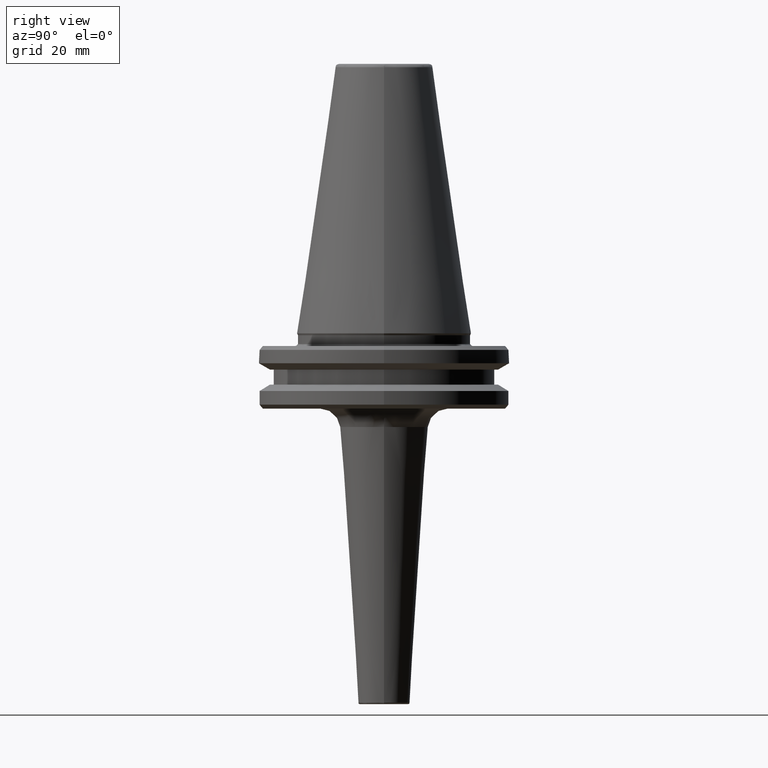
[diagram: clean part render]
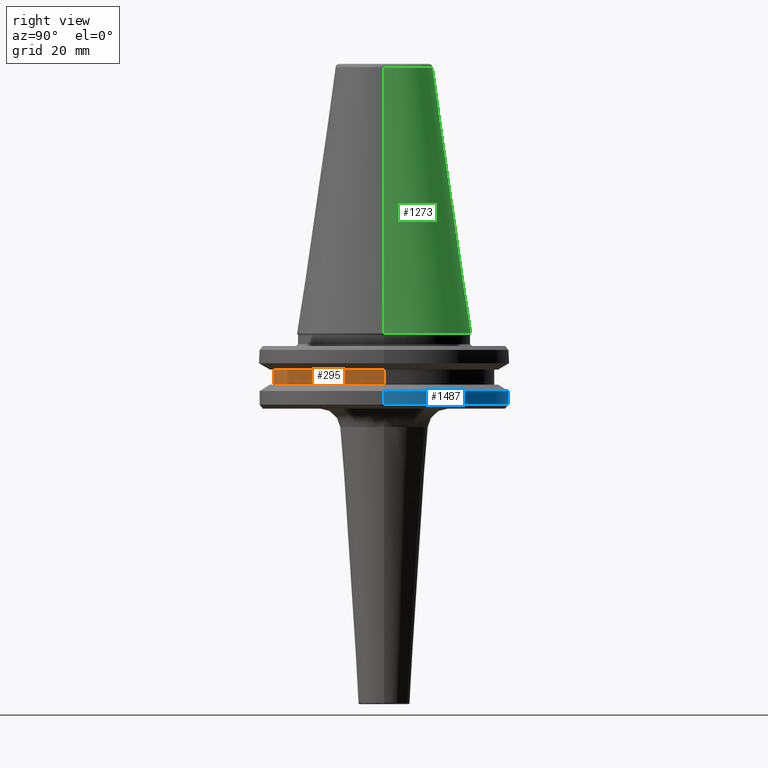
[diagram: same view with three faces highlighted in distinct colors, each labeled with its STEP entity id]
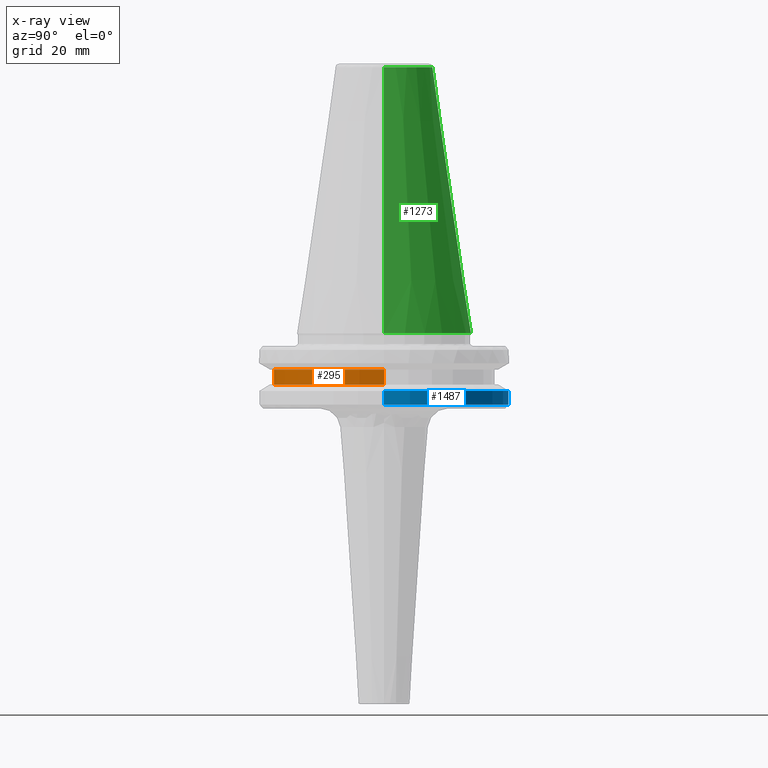
[diagram: x-ray of the same camera — body ghosted, the three highlighted faces saturated]
A machine part, right view with three faces highlighted in distinct colors.
The next image is the same camera in x-ray (body ghosted, the three faces saturated) — at least one of them is partly hidden behind the body in this view.
Their STEP definitions:

[orange] entity #295 — the highlighted cylindrical surface (partial cylindrical patch) has radius 28 mm, axis along (0, 0, 1).
#87 = VERTEX_POINT ( 'NONE', #1504 ) ;
#103 = VECTOR ( 'NONE', #912, 1000.000000000000000 ) ;
#135 = CARTESIAN_POINT ( 'NONE',  ( 0.0000000000000000000, 0.0000000000000000000, 113.5216080541959500 ) ) ;
#197 = ORIENTED_EDGE ( 'NONE', *, *, #1276, .T. ) ;
#214 = DIRECTION ( 'NONE',  ( 1.000000000000000000, 0.0000000000000000000, 0.0000000000000000000 ) ) ;
#216 = DIRECTION ( 'NONE',  ( -0.0000000000000000000, -0.0000000000000000000, -1.000000000000000000 ) ) ;
#219 = CARTESIAN_POINT ( 'NONE',  ( 0.0000000000000000000, 0.0000000000000000000, -9.199999999999999300 ) ) ;
#295 = ADVANCED_FACE ( 'NONE', ( #928 ), #542, .T. ) ;
#318 = CARTESIAN_POINT ( 'NONE',  ( 28.00000000000000000, 0.0000000000000000000, -9.199999999999999300 ) ) ;
#382 = EDGE_CURVE ( 'NONE', #87, #584, #565, .T. ) ;
#461 = DIRECTION ( 'NONE',  ( 0.0000000000000000000, 0.0000000000000000000, 1.000000000000000000 ) ) ;
#542 = CYLINDRICAL_SURFACE ( 'NONE', #919, 28.00000000000000000 ) ;
#565 = CIRCLE ( 'NONE', #618, 28.00000000000000000 ) ;
#584 = VERTEX_POINT ( 'NONE', #1349 ) ;
#589 = CARTESIAN_POINT ( 'NONE',  ( 0.0000000000000000000, 0.0000000000000000000, -13.00000000000001100 ) ) ;
#598 = CARTESIAN_POINT ( 'NONE',  ( -28.00000000000000000, 3.429011037612589300E-015, 113.5216080541959500 ) ) ;
#618 = AXIS2_PLACEMENT_3D ( 'NONE', #589, #461, #827 ) ;
#619 = VECTOR ( 'NONE', #630, 1000.000000000000000 ) ;
#630 = DIRECTION ( 'NONE',  ( 0.0000000000000000000, 0.0000000000000000000, 1.000000000000000000 ) ) ;
#638 = DIRECTION ( 'NONE',  ( 0.0000000000000000000, 0.0000000000000000000, 1.000000000000000000 ) ) ;
#664 = LINE ( 'NONE', #938, #103 ) ;
#769 = ORIENTED_EDGE ( 'NONE', *, *, #814, .T. ) ;
#781 = CARTESIAN_POINT ( 'NONE',  ( -28.00000000000000000, 3.429011037612589300E-015, -9.199999999999999300 ) ) ;
#801 = LINE ( 'NONE', #598, #619 ) ;
#814 = EDGE_CURVE ( 'NONE', #584, #1229, #664, .T. ) ;
#827 = DIRECTION ( 'NONE',  ( 1.000000000000000000, 0.0000000000000000000, 0.0000000000000000000 ) ) ;
#910 = VERTEX_POINT ( 'NONE', #781 ) ;
#912 = DIRECTION ( 'NONE',  ( 0.0000000000000000000, 0.0000000000000000000, 1.000000000000000000 ) ) ;
#919 = AXIS2_PLACEMENT_3D ( 'NONE', #135, #638, #959 ) ;
#928 = FACE_OUTER_BOUND ( 'NONE', #966, .T. ) ;
#938 = CARTESIAN_POINT ( 'NONE',  ( 28.00000000000000000, 0.0000000000000000000, 113.5216080541959500 ) ) ;
#959 = DIRECTION ( 'NONE',  ( 1.000000000000000000, 0.0000000000000000000, 0.0000000000000000000 ) ) ;
#966 = EDGE_LOOP ( 'NONE', ( #1157, #1197, #769, #197 ) ) ;
#997 = AXIS2_PLACEMENT_3D ( 'NONE', #219, #216, #214 ) ;
#1069 = EDGE_CURVE ( 'NONE', #87, #910, #801, .T. ) ;
#1075 = CIRCLE ( 'NONE', #997, 28.00000000000000000 ) ;
#1157 = ORIENTED_EDGE ( 'NONE', *, *, #1069, .F. ) ;
#1197 = ORIENTED_EDGE ( 'NONE', *, *, #382, .T. ) ;
#1229 = VERTEX_POINT ( 'NONE', #318 ) ;
#1276 = EDGE_CURVE ( 'NONE', #1229, #910, #1075, .T. ) ;
#1349 = CARTESIAN_POINT ( 'NONE',  ( 28.00000000000000000, 0.0000000000000000000, -13.00000000000001100 ) ) ;
#1504 = CARTESIAN_POINT ( 'NONE',  ( -28.00000000000000000, 3.429011037612589300E-015, -13.00000000000001100 ) ) ;

[blue] entity #1487 — the highlighted cylindrical surface (partial cylindrical patch) has radius 31.75 mm, axis along (0, 0, 1).
#11 = LINE ( 'NONE', #315, #775 ) ;
#131 = VERTEX_POINT ( 'NONE', #1471 ) ;
#230 = CYLINDRICAL_SURFACE ( 'NONE', #1467, 31.75000000000000000 ) ;
#263 = LINE ( 'NONE', #872, #989 ) ;
#289 = DIRECTION ( 'NONE',  ( 0.0000000000000000000, 0.0000000000000000000, 1.000000000000000000 ) ) ;
#297 = DIRECTION ( 'NONE',  ( 1.000000000000000000, 0.0000000000000000000, 0.0000000000000000000 ) ) ;
#302 = DIRECTION ( 'NONE',  ( 0.0000000000000000000, 0.0000000000000000000, 1.000000000000000000 ) ) ;
#315 = CARTESIAN_POINT ( 'NONE',  ( -31.75000000000000000, 3.888253587292846500E-015, 113.5216080541959500 ) ) ;
#409 = ORIENTED_EDGE ( 'NONE', *, *, #1239, .T. ) ;
#426 = CARTESIAN_POINT ( 'NONE',  ( 0.0000000000000000000, 0.0000000000000000000, -14.62183664205671500 ) ) ;
#469 = CARTESIAN_POINT ( 'NONE',  ( 31.75000000000000700, 0.0000000000000000000, -14.62183664205671500 ) ) ;
#470 = VERTEX_POINT ( 'NONE', #469 ) ;
#486 = EDGE_CURVE ( 'NONE', #131, #1438, #977, .T. ) ;
#487 = CARTESIAN_POINT ( 'NONE',  ( 0.0000000000000000000, 0.0000000000000000000, 113.5216080541959500 ) ) ;
#559 = CARTESIAN_POINT ( 'NONE',  ( -31.74999999999936100, 3.888253587292767600E-015, -18.10000000000066900 ) ) ;
#614 = DIRECTION ( 'NONE',  ( -1.000000000000000000, 0.0000000000000000000, 0.0000000000000000000 ) ) ;
#662 = AXIS2_PLACEMENT_3D ( 'NONE', #426, #991, #614 ) ;
#775 = VECTOR ( 'NONE', #302, 1000.000000000000000 ) ;
#793 = CARTESIAN_POINT ( 'NONE',  ( -31.75000000000000700, 3.888253587292847300E-015, -14.62183664205671500 ) ) ;
#839 = DIRECTION ( 'NONE',  ( -0.0000000000000000000, -0.0000000000000000000, 1.000000000000000000 ) ) ;
#872 = CARTESIAN_POINT ( 'NONE',  ( 31.75000000000000000, 0.0000000000000000000, 113.5216080541959500 ) ) ;
#883 = ORIENTED_EDGE ( 'NONE', *, *, #486, .T. ) ;
#904 = ORIENTED_EDGE ( 'NONE', *, *, #1418, .F. ) ;
#906 = VERTEX_POINT ( 'NONE', #793 ) ;
#944 = CIRCLE ( 'NONE', #662, 31.75000000000000700 ) ;
#955 = ORIENTED_EDGE ( 'NONE', *, *, #1498, .F. ) ;
#977 = CIRCLE ( 'NONE', #1227, 31.75000000000005700 ) ;
#989 = VECTOR ( 'NONE', #289, 1000.000000000000000 ) ;
#991 = DIRECTION ( 'NONE',  ( -0.0000000000000000000, -0.0000000000000000000, 1.000000000000000000 ) ) ;
#1035 = CARTESIAN_POINT ( 'NONE',  ( 0.0000000000000000000, 0.0000000000000000000, -18.10000000000066900 ) ) ;
#1039 = DIRECTION ( 'NONE',  ( 1.000000000000000000, 0.0000000000000000000, 0.0000000000000000000 ) ) ;
#1227 = AXIS2_PLACEMENT_3D ( 'NONE', #1035, #839, #1039 ) ;
#1236 = EDGE_LOOP ( 'NONE', ( #883, #409, #904, #955 ) ) ;
#1239 = EDGE_CURVE ( 'NONE', #1438, #906, #11, .T. ) ;
#1245 = DIRECTION ( 'NONE',  ( 0.0000000000000000000, 0.0000000000000000000, 1.000000000000000000 ) ) ;
#1418 = EDGE_CURVE ( 'NONE', #470, #906, #944, .T. ) ;
#1428 = FACE_OUTER_BOUND ( 'NONE', #1236, .T. ) ;
#1438 = VERTEX_POINT ( 'NONE', #559 ) ;
#1467 = AXIS2_PLACEMENT_3D ( 'NONE', #487, #1245, #297 ) ;
#1471 = CARTESIAN_POINT ( 'NONE',  ( 31.74999999999936100, 0.0000000000000000000, -18.10000000000066900 ) ) ;
#1487 = ADVANCED_FACE ( 'NONE', ( #1428 ), #230, .T. ) ;
#1498 = EDGE_CURVE ( 'NONE', #131, #470, #263, .T. ) ;

[green] entity #1273 — the highlighted conical surface has half-angle 8.297 deg.
#24 = VERTEX_POINT ( 'NONE', #1506 ) ;
#52 = LINE ( 'NONE', #864, #1186 ) ;
#71 = CONICAL_SURFACE ( 'NONE', #909, 22.22500000000000100, 0.1448138465474190500 ) ;
#152 = CIRCLE ( 'NONE', #1152, 12.37469537611110800 ) ;
#178 = DIRECTION ( 'NONE',  ( -1.000000000000000000, 0.0000000000000000000, 0.0000000000000000000 ) ) ;
#181 = DIRECTION ( 'NONE',  ( 0.0000000000000000000, 0.0000000000000000000, -1.000000000000000000 ) ) ;
#186 = CARTESIAN_POINT ( 'NONE',  ( 0.0000000000000000000, 0.0000000000000000000, 67.54430822726729400 ) ) ;
#194 = EDGE_LOOP ( 'NONE', ( #1450, #1083, #1453, #730 ) ) ;
#212 = DIRECTION ( 'NONE',  ( 0.1443082272673070500, 1.767266086135363700E-017, -0.9895327864921743500 ) ) ;
#220 = VERTEX_POINT ( 'NONE', #234 ) ;
#222 = EDGE_CURVE ( 'NONE', #24, #894, #890, .T. ) ;
#234 = CARTESIAN_POINT ( 'NONE',  ( -12.37469537611110800, 0.0000000000000000000, 67.54430822726729400 ) ) ;
#239 = CARTESIAN_POINT ( 'NONE',  ( 0.0000000000000000000, 0.0000000000000000000, 0.0000000000000000000 ) ) ;
#243 = CARTESIAN_POINT ( 'NONE',  ( 22.22500000000000100, 2.721777511104992800E-015, 0.0000000000000000000 ) ) ;
#253 = DIRECTION ( 'NONE',  ( -0.1443082272673070500, 0.0000000000000000000, -0.9895327864921743500 ) ) ;
#266 = DIRECTION ( 'NONE',  ( 0.0000000000000000000, 0.0000000000000000000, -1.000000000000000000 ) ) ;
#281 = DIRECTION ( 'NONE',  ( -1.000000000000000000, 0.0000000000000000000, 0.0000000000000000000 ) ) ;
#285 = EDGE_CURVE ( 'NONE', #220, #1126, #52, .T. ) ;
#354 = FACE_OUTER_BOUND ( 'NONE', #194, .T. ) ;
#566 = CARTESIAN_POINT ( 'NONE',  ( -22.22500000000000500, 2.721777511104993200E-015, 0.0000000000000000000 ) ) ;
#571 = DIRECTION ( 'NONE',  ( -0.0000000000000000000, -0.0000000000000000000, 1.000000000000000000 ) ) ;
#674 = AXIS2_PLACEMENT_3D ( 'NONE', #1073, #571, #816 ) ;
#724 = EDGE_CURVE ( 'NONE', #894, #1126, #1429, .T. ) ;
#730 = ORIENTED_EDGE ( 'NONE', *, *, #285, .F. ) ;
#809 = CARTESIAN_POINT ( 'NONE',  ( 22.22500000000000500, 0.0000000000000000000, 0.0000000000000000000 ) ) ;
#816 = DIRECTION ( 'NONE',  ( -1.000000000000000000, 0.0000000000000000000, 6.244223985518314900E-016 ) ) ;
#864 = CARTESIAN_POINT ( 'NONE',  ( -22.22500000000000100, 0.0000000000000000000, 0.0000000000000000000 ) ) ;
#890 = LINE ( 'NONE', #243, #1422 ) ;
#894 = VERTEX_POINT ( 'NONE', #809 ) ;
#909 = AXIS2_PLACEMENT_3D ( 'NONE', #239, #266, #281 ) ;
#1073 = CARTESIAN_POINT ( 'NONE',  ( 0.0000000000000000000, 0.0000000000000000000, 0.0000000000000000000 ) ) ;
#1083 = ORIENTED_EDGE ( 'NONE', *, *, #222, .T. ) ;
#1126 = VERTEX_POINT ( 'NONE', #566 ) ;
#1152 = AXIS2_PLACEMENT_3D ( 'NONE', #186, #181, #178 ) ;
#1186 = VECTOR ( 'NONE', #253, 1000.000000000000000 ) ;
#1273 = ADVANCED_FACE ( 'NONE', ( #354 ), #71, .T. ) ;
#1293 = EDGE_CURVE ( 'NONE', #220, #24, #152, .T. ) ;
#1422 = VECTOR ( 'NONE', #212, 1000.000000000000000 ) ;
#1429 = CIRCLE ( 'NONE', #674, 22.22500000000000100 ) ;
#1450 = ORIENTED_EDGE ( 'NONE', *, *, #1293, .T. ) ;
#1453 = ORIENTED_EDGE ( 'NONE', *, *, #724, .T. ) ;
#1506 = CARTESIAN_POINT ( 'NONE',  ( 12.37469537611110800, 2.118620309691396900E-015, 67.54430822726729400 ) ) ;